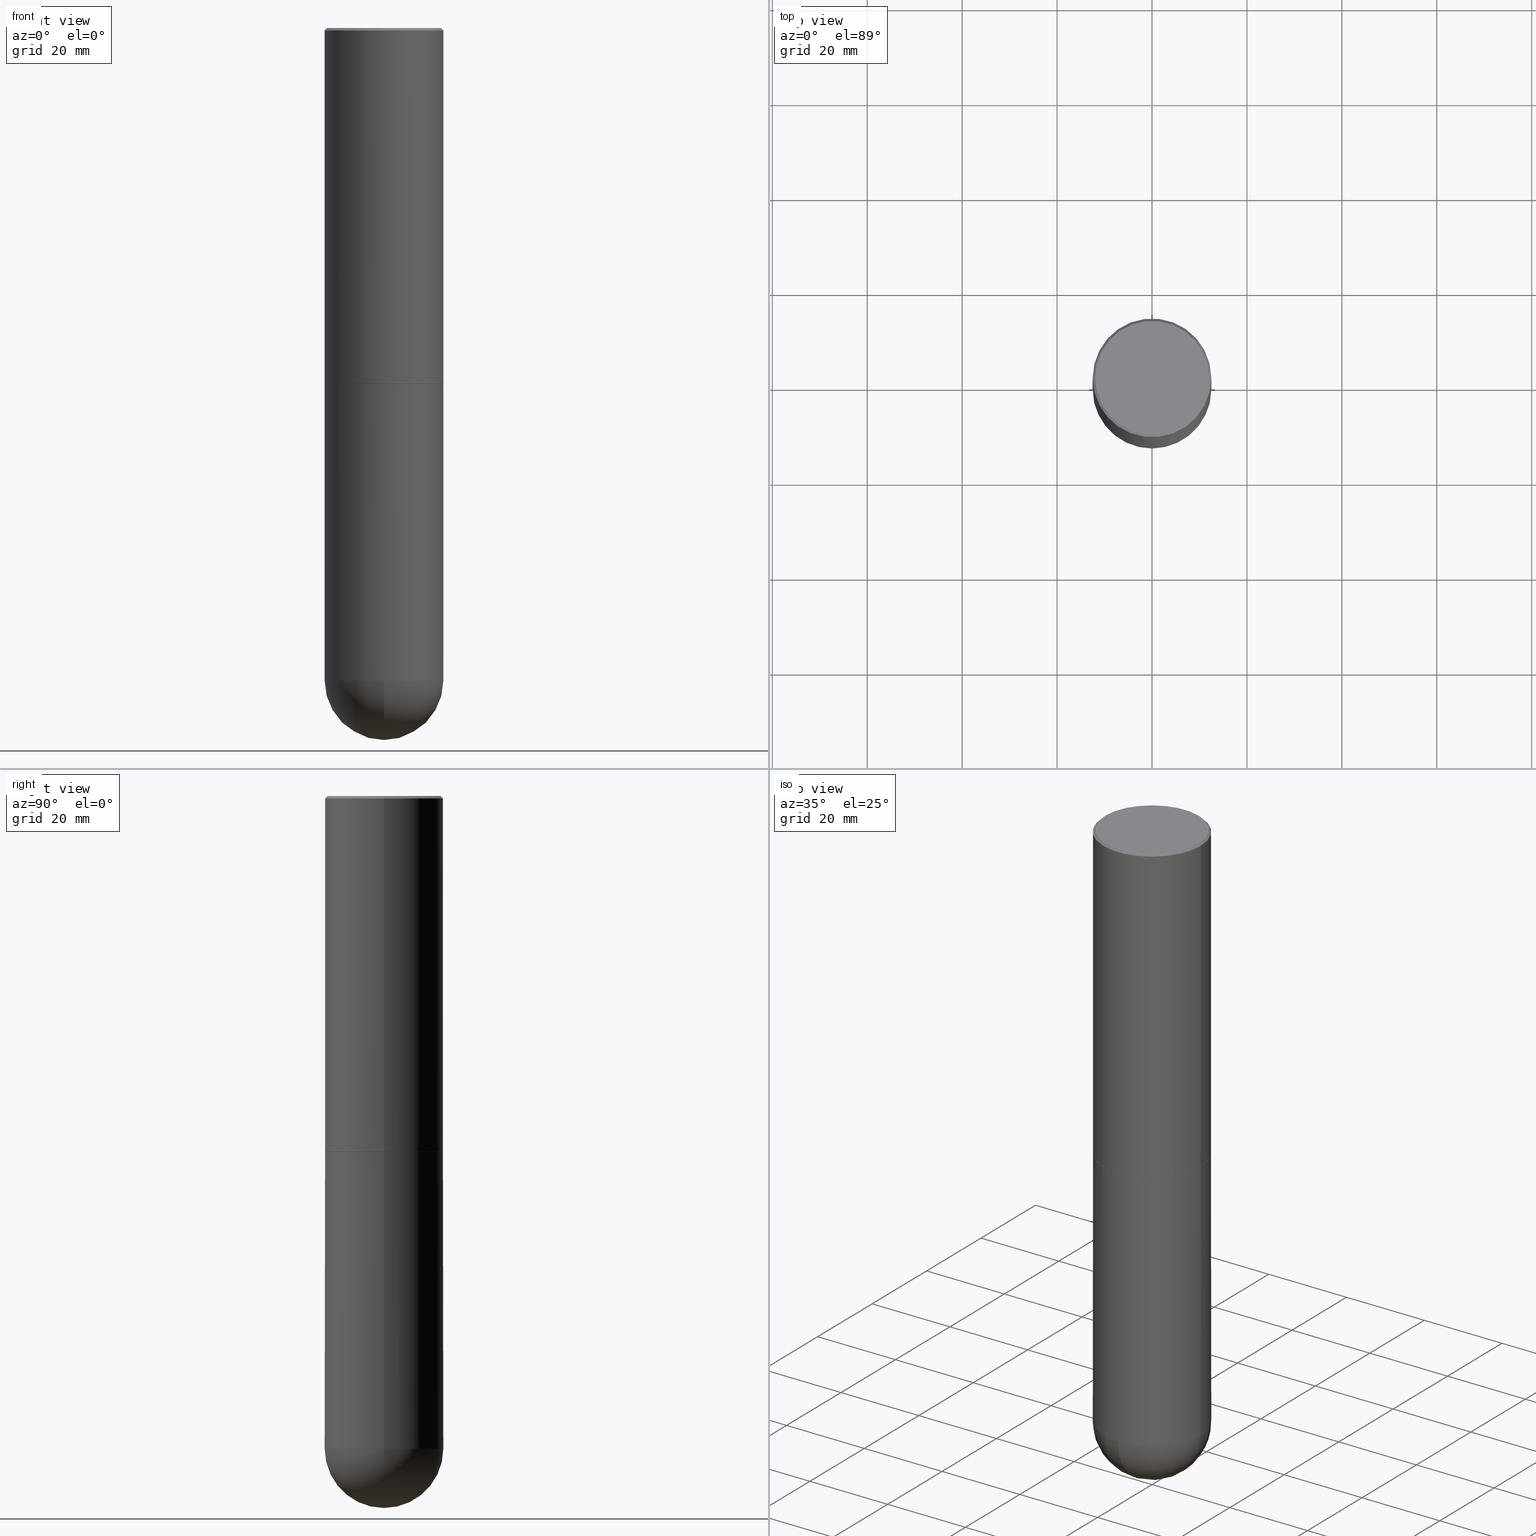
[diagram: canonical four-view strip — front | top / right | iso, engineering-drawing reading convention]
A machine part, canonical four-view strip (front | top / right | iso — engineering-drawing reading convention). The complete STEP part file that produces these views, byte-faithful:
ISO-10303-21;
HEADER;
FILE_DESCRIPTION (( 'STEP AP203' ),
    '1' );
FILE_NAME ('49530.STEP',
    '2024-04-10T12:15:57',
    ( '' ),
    ( '' ),
    'SwSTEP 2.0',
    'SolidWorks 2023',
    '' );
FILE_SCHEMA (( 'CONFIG_CONTROL_DESIGN' ));
ENDSEC;

DATA;
#1 = DIRECTION ( 'NONE',  ( -2.445468806185136597E-29, 3.491481338843145583E-15, 1.000000000000000000 ) ) ;
#2 = ORIENTED_EDGE ( 'NONE', *, *, #310, .T. ) ;
#3 = DIRECTION ( 'NONE',  ( 1.000000000000000000, -6.982962677686264344E-15, 0.000000000000000000 ) ) ;
#4 = ORIENTED_EDGE ( 'NONE', *, *, #162, .T. ) ;
#5 = CIRCLE ( 'NONE', #201, 0.4921500000000000319 ) ;
#6 = ORIENTED_EDGE ( 'NONE', *, *, #77, .F. ) ;
#7 = ORIENTED_EDGE ( 'NONE', *, *, #71, .F. ) ;
#8 = DIRECTION ( 'NONE',  ( -2.445468806185136597E-29, 3.491481338843145583E-15, 1.000000000000000000 ) ) ;
#9 = ADVANCED_FACE ( 'NONE', ( #134 ), #102, .T. ) ;
#10 = DATE_AND_TIME ( #18, #284 ) ;
#11 = CARTESIAN_POINT ( 'NONE',  ( -3.496936074043201946E-15, -0.4921500000000192387, -5.413349999999997664 ) ) ;
#12 = APPROVAL_PERSON_ORGANIZATION ( #86, #329, #153 ) ;
#13 = ORIENTED_EDGE ( 'NONE', *, *, #369, .T. ) ;
#14 = DIRECTION ( 'NONE',  ( 0.7071067811865474617, -2.468850131082256666E-15, 0.7071067811865474617 ) ) ;
#15 = DIRECTION ( 'NONE',  ( 6.982962677686266711E-15, 1.000000000000000000, -4.440675393541420887E-15 ) ) ;
#16 = EDGE_CURVE ( 'NONE', #173, #208, #382, .T. ) ;
#17 = DIRECTION ( 'NONE',  ( 1.000000000000000000, -6.982962677686265922E-15, 0.000000000000000000 ) ) ;
#18 = CALENDAR_DATE ( 2024, 10, 4 ) ;
#19 = AXIS2_PLACEMENT_3D ( 'NONE', #363, #191, #17 ) ;
#20 = CYLINDRICAL_SURFACE ( 'NONE', #324, 0.4921500000000001984 ) ;
#21 = PERSON_AND_ORGANIZATION ( #388, #263 ) ;
#22 = DIRECTION ( 'NONE',  ( -2.445468806185136597E-29, 3.491481338843145583E-15, 1.000000000000000000 ) ) ;
#23 = DATE_AND_TIME ( #33, #312 ) ;
#24 = CARTESIAN_POINT ( 'NONE',  ( -0.4921499999999999764, -1.110801765337101862E-14, -5.413349999999999440 ) ) ;
#25 = LINE ( 'NONE', #58, #411 ) ;
#26 = PERSON_AND_ORGANIZATION_ROLE ( 'classification_officer' ) ;
#27 = AXIS2_PLACEMENT_3D ( 'NONE', #32, #286, #232 ) ;
#28 = EDGE_CURVE ( 'NONE', #285, #208, #350, .T. ) ;
#29 = CONICAL_SURFACE ( 'NONE', #192, 0.4921500000000000319, 0.7853981633974473908 ) ;
#30 = ORIENTED_EDGE ( 'NONE', *, *, #375, .F. ) ;
#31 = EDGE_CURVE ( 'NONE', #208, #78, #187, .T. ) ;
#32 = CARTESIAN_POINT ( 'NONE',  ( 1.290705878404842200E-28, -1.937479287376659043E-14, -5.413349999999999440 ) ) ;
#33 = CALENDAR_DATE ( 2024, 10, 4 ) ;
#34 = ORIENTED_EDGE ( 'NONE', *, *, #94, .T. ) ;
#35 = FACE_OUTER_BOUND ( 'NONE', #386, .T. ) ;
#36 = AXIS2_PLACEMENT_3D ( 'NONE', #239, #40, #353 ) ;
#37 = LOCAL_TIME ( 8, 15, 57.00000000000000000, #112 ) ;
#38 = EDGE_CURVE ( 'NONE', #314, #315, #398, .T. ) ;
#39 = ORIENTED_EDGE ( 'NONE', *, *, #223, .F. ) ;
#40 = DIRECTION ( 'NONE',  ( -2.445468806185136597E-29, 3.491481338843145583E-15, 1.000000000000000000 ) ) ;
#41 = EDGE_LOOP ( 'NONE', ( #30, #34, #390, #4, #125 ) ) ;
#42 = PLANE ( 'NONE',  #224 ) ;
#43 = VERTEX_POINT ( 'NONE', #336 ) ;
#44 = DIRECTION ( 'NONE',  ( 2.438088387897960049E-29, -3.491481338843145188E-15, -1.000000000000000000 ) ) ;
#45 = AXIS2_PLACEMENT_3D ( 'NONE', #370, #82, #190 ) ;
#46 = DIRECTION ( 'NONE',  ( -2.445468806185136597E-29, 3.491481338843145583E-15, 1.000000000000000000 ) ) ;
#47 = APPROVAL ( #354, 'UNSPECIFIED' ) ;
#48 = EDGE_LOOP ( 'NONE', ( #39, #185 ) ) ;
#49 =( CONVERSION_BASED_UNIT ( 'INCH', #328 ) LENGTH_UNIT ( ) NAMED_UNIT ( #402 ) );
#50 = AXIS2_PLACEMENT_3D ( 'NONE', #403, #335, #56 ) ;
#51 = CC_DESIGN_SECURITY_CLASSIFICATION ( #68, ( #226 ) ) ;
#52 = LINE ( 'NONE', #119, #116 ) ;
#53 = CARTESIAN_POINT ( 'NONE',  ( 1.290705878404842200E-28, -1.937479287376659043E-14, -5.413349999999999440 ) ) ;
#54 = DIRECTION ( 'NONE',  ( -2.445468806185136877E-29, 3.491481338843145188E-15, 1.000000000000000000 ) ) ;
#55 = DIRECTION ( 'NONE',  ( 6.982962677686266711E-15, 1.000000000000000000, -4.440675393541420887E-15 ) ) ;
#56 = DIRECTION ( 'NONE',  ( 1.000000000000000000, -6.982962677686265922E-15, 4.876176775795935793E-29 ) ) ;
#57 = CONICAL_SURFACE ( 'NONE', #235, 0.4921500000000000319, 0.7853981633974473908 ) ;
#58 = CARTESIAN_POINT ( 'NONE',  ( -0.4921500000000001984, 3.496936074043334475E-15, -2.420853904668952630E-29 ) ) ;
#59 = CARTESIAN_POINT ( 'NONE',  ( 7.220735744022853640E-29, -1.030929694920215659E-14, -2.952700000000000546 ) ) ;
#60 = PRODUCT_DEFINITION_SHAPE ( 'NONE', 'NONE',  #137 ) ;
#61 = APPROVAL_STATUS ( 'not_yet_approved' ) ;
#62 = ORIENTED_EDGE ( 'NONE', *, *, #74, .T. ) ;
#63 = CALENDAR_DATE ( 2024, 10, 4 ) ;
#64 = FACE_OUTER_BOUND ( 'NONE', #48, .T. ) ;
#65 = ORIENTED_EDGE ( 'NONE', *, *, #223, .T. ) ;
#66 = CC_DESIGN_PERSON_AND_ORGANIZATION_ASSIGNMENT ( #250, #126, ( #137 ) ) ;
#67 = AXIS2_PLACEMENT_3D ( 'NONE', #332, #90, #216 ) ;
#68 = SECURITY_CLASSIFICATION ( '', '', #141 ) ;
#69 = ADVANCED_FACE ( 'NONE', ( #217 ), #57, .T. ) ;
#70 = CARTESIAN_POINT ( 'NONE',  ( -0.4911499999999999755, -6.814167848168200725E-15, -2.952700000000000546 ) ) ;
#71 = EDGE_CURVE ( 'NONE', #315, #81, #287, .T. ) ;
#72 = ORIENTED_EDGE ( 'NONE', *, *, #28, .F. ) ;
#73 = DIRECTION ( 'NONE',  ( 0.7071067811865469066, -7.319954787623254468E-15, -0.7071067811865482389 ) ) ;
#74 = EDGE_CURVE ( 'NONE', #264, #315, #25, .T. ) ;
#75 = AXIS2_PLACEMENT_3D ( 'NONE', #158, #276, #399 ) ;
#76 = APPROVAL_DATE_TIME ( #240, #329 ) ;
#77 = EDGE_CURVE ( 'NONE', #377, #81, #140, .T. ) ;
#78 = VERTEX_POINT ( 'NONE', #24 ) ;
#79 = CARTESIAN_POINT ( 'NONE',  ( -0.4921499999999999764, 3.496936074043332897E-15, -2.420853904668951509E-29 ) ) ;
#80 = CARTESIAN_POINT ( 'NONE',  ( -0.4911499999999999755, -6.819466302516424705E-15, -2.952700000000000546 ) ) ;
#81 = VERTEX_POINT ( 'NONE', #132 ) ;
#82 = DIRECTION ( 'NONE',  ( -1.000000000000000000, 7.105427357601001070E-15, -4.926315508542082329E-29 ) ) ;
#83 = SPHERICAL_SURFACE ( 'NONE', #106, 0.4921500000000000874 ) ;
#84 = CIRCLE ( 'NONE', #92, 0.4921500000000003094 ) ;
#85 = AXIS2_PLACEMENT_3D ( 'NONE', #99, #135, #337 ) ;
#86 = PERSON_AND_ORGANIZATION ( #388, #263 ) ;
#87 = DIRECTION ( 'NONE',  ( -2.445468806185136597E-29, 3.491481338843145583E-15, 1.000000000000000000 ) ) ;
#88 = DIRECTION ( 'NONE',  ( -0.7071067811865469066, 2.468850131082249961E-15, -0.7071067811865482389 ) ) ;
#89 = APPROVAL_STATUS ( 'not_yet_approved' ) ;
#90 = DIRECTION ( 'NONE',  ( -2.445468806185136597E-29, 3.491481338843145583E-15, 1.000000000000000000 ) ) ;
#91 = FACE_OUTER_BOUND ( 'NONE', #202, .T. ) ;
#92 = AXIS2_PLACEMENT_3D ( 'NONE', #243, #356, #209 ) ;
#93 = DIRECTION ( 'NONE',  ( -2.445468806185136877E-29, 3.491481338843145188E-15, 1.000000000000000000 ) ) ;
#94 = EDGE_CURVE ( 'NONE', #78, #378, #303, .T. ) ;
#95 = PERSON_AND_ORGANIZATION_ROLE ( 'design_supplier' ) ;
#96 = UNCERTAINTY_MEASURE_WITH_UNIT (LENGTH_MEASURE( 1.000000000000000082E-05 ), #49, 'distance_accuracy_value', 'NONE');
#97 = ORIENTED_EDGE ( 'NONE', *, *, #71, .T. ) ;
#98 = DIRECTION ( 'NONE',  ( -2.445468806185136877E-29, 3.491481338843145188E-15, 1.000000000000000000 ) ) ;
#99 = CARTESIAN_POINT ( 'NONE',  ( 0.000000000000000000, 0.000000000000000000, 0.000000000000000000 ) ) ;
#100 = ORIENTED_EDGE ( 'NONE', *, *, #375, .T. ) ;
#101 = DIRECTION ( 'NONE',  ( -2.445468806185136597E-29, 3.491481338843145583E-15, 1.000000000000000000 ) ) ;
#102 = CYLINDRICAL_SURFACE ( 'NONE', #211, 0.4921499999999999764 ) ;
#103 = ORIENTED_EDGE ( 'NONE', *, *, #345, .T. ) ;
#104 = CARTESIAN_POINT ( 'NONE',  ( 1.323817856196230713E-28, -1.890061050562653856E-14, -5.413349999999999440 ) ) ;
#105 = DIRECTION ( 'NONE',  ( -2.445468806185136597E-29, 3.491481338843145583E-15, 1.000000000000000000 ) ) ;
#106 = AXIS2_PLACEMENT_3D ( 'NONE', #53, #129, #15 ) ;
#107 = ORIENTED_EDGE ( 'NONE', *, *, #404, .F. ) ;
#108 = MANIFOLD_SOLID_BREP ( 'Body-Move/Copy2[1]', #364 ) ;
#109 = FACE_OUTER_BOUND ( 'NONE', #318, .T. ) ;
#110 = CC_DESIGN_DATE_AND_TIME_ASSIGNMENT ( #408, #309, ( #68 ) ) ;
#111 = DIRECTION ( 'NONE',  ( -1.000000000000000000, 6.982962677686265922E-15, -4.876176775795935793E-29 ) ) ;
#112 = COORDINATED_UNIVERSAL_TIME_OFFSET ( 5, 0, .BEHIND. ) ;
#113 = ORIENTED_EDGE ( 'NONE', *, *, #412, .T. ) ;
#114 = LINE ( 'NONE', #234, #268 ) ;
#115 = VECTOR ( 'NONE', #88, 39.37007874015748143 ) ;
#116 = VECTOR ( 'NONE', #14, 39.37007874015748854 ) ;
#117 = COORDINATED_UNIVERSAL_TIME_OFFSET ( 5, 0, .BEHIND. ) ;
#118 = EDGE_LOOP ( 'NONE', ( #244, #290, #170, #385 ) ) ;
#119 = CARTESIAN_POINT ( 'NONE',  ( 0.4911499999999999755, -1.373897906834776478E-14, -2.952700000000000546 ) ) ;
#120 = CARTESIAN_POINT ( 'NONE',  ( -8.142041031814712920E-45, 1.162467672896748646E-30, 3.329439742278319996E-16 ) ) ;
#121 = CC_DESIGN_PERSON_AND_ORGANIZATION_ASSIGNMENT ( #207, #327, ( #226 ) ) ;
#122 = DESIGN_CONTEXT ( 'detailed design', #406, 'design' ) ;
#123 = VERTEX_POINT ( 'NONE', #256 ) ;
#124 = PLANE ( 'NONE',  #344 ) ;
#125 = ORIENTED_EDGE ( 'NONE', *, *, #310, .F. ) ;
#126 = PERSON_AND_ORGANIZATION_ROLE ( 'creator' ) ;
#127 =( NAMED_UNIT ( * ) SI_UNIT ( $, .STERADIAN. ) SOLID_ANGLE_UNIT ( ) );
#128 = VECTOR ( 'NONE', #373, 39.37007874015748143 ) ;
#129 = DIRECTION ( 'NONE',  ( -1.000000000000000000, 6.982962677686266711E-15, -4.883557194083112901E-29 ) ) ;
#130 = CARTESIAN_POINT ( 'NONE',  ( 3.436665081823426728E-15, 0.4921499999999808250, -5.413350000000002105 ) ) ;
#131 = COORDINATED_UNIVERSAL_TIME_OFFSET ( 5, 0, .BEHIND. ) ;
#132 = CARTESIAN_POINT ( 'NONE',  ( 0.4921500000000000319, -3.446223716380123138E-15, -0.02000000000000010797 ) ) ;
#133 = CIRCLE ( 'NONE', #75, 0.4911499999999999755 ) ;
#134 = FACE_OUTER_BOUND ( 'NONE', #41, .T. ) ;
#135 = DIRECTION ( 'NONE',  ( 0.000000000000000000, 0.000000000000000000, 1.000000000000000000 ) ) ;
#136 = CARTESIAN_POINT ( 'NONE',  ( 0.4921499999999999764, -3.436665081823295777E-15, 2.399810400207969603E-29 ) ) ;
#137 = PRODUCT_DEFINITION ( 'UNKNOWN', '', #226, #122 ) ;
#138 = SHAPE_DEFINITION_REPRESENTATION ( #60, #218 ) ;
#139 = ORIENTED_EDGE ( 'NONE', *, *, #94, .F. ) ;
#140 = LINE ( 'NONE', #308, #383 ) ;
#141 = SECURITY_CLASSIFICATION_LEVEL ( 'unclassified' ) ;
#142 = AXIS2_PLACEMENT_3D ( 'NONE', #248, #87, #279 ) ;
#143 = ORIENTED_EDGE ( 'NONE', *, *, #342, .T. ) ;
#144 = CARTESIAN_POINT ( 'NONE',  ( 4.890937612370299433E-31, -6.982962677686328587E-17, -0.02000000000000010797 ) ) ;
#145 = CC_DESIGN_PERSON_AND_ORGANIZATION_ASSIGNMENT ( #306, #95, ( #226 ) ) ;
#146 = DIRECTION ( 'NONE',  ( 1.000000000000000000, -6.982962677686266711E-15, 4.876176775795935232E-29 ) ) ;
#147 = ORIENTED_EDGE ( 'NONE', *, *, #180, .F. ) ;
#148 = ORIENTED_EDGE ( 'NONE', *, *, #266, .T. ) ;
#149 = AXIS2_PLACEMENT_3D ( 'NONE', #247, #254, #55 ) ;
#150 = DIRECTION ( 'NONE',  ( 1.000000000000000000, -6.982962677686265922E-15, 0.000000000000000000 ) ) ;
#151 = ORIENTED_EDGE ( 'NONE', *, *, #412, .F. ) ;
#152 = DIRECTION ( 'NONE',  ( -2.445468806185136597E-29, 3.491481338843145583E-15, 1.000000000000000000 ) ) ;
#153 = APPROVAL_ROLE ( '' ) ;
#154 = AXIS2_PLACEMENT_3D ( 'NONE', #160, #165, #253 ) ;
#155 = DIRECTION ( 'NONE',  ( -0.7071067811865474617, 7.493145998870352582E-15, 0.7071067811865474617 ) ) ;
#156 = DIRECTION ( 'NONE',  ( -2.445468806185136597E-29, 3.491481338843145583E-15, 1.000000000000000000 ) ) ;
#157 = ADVANCED_FACE ( 'NONE', ( #64 ), #200, .F. ) ;
#158 = CARTESIAN_POINT ( 'NONE',  ( 7.220735744022853640E-29, -1.030929694920215659E-14, -2.952700000000000546 ) ) ;
#159 = LINE ( 'NONE', #79, #251 ) ;
#160 = CARTESIAN_POINT ( 'NONE',  ( 1.323817856196230713E-28, -1.890061050562653856E-14, -5.413349999999999440 ) ) ;
#161 = CONICAL_SURFACE ( 'NONE', #67, 0.4911499999999999755, 0.7853981633974482790 ) ;
#162 = EDGE_CURVE ( 'NONE', #285, #123, #405, .T. ) ;
#163 = DATE_TIME_ROLE ( 'creation_date' ) ;
#164 =( LENGTH_UNIT ( ) NAMED_UNIT ( * ) SI_UNIT ( $, .METRE. ) );
#165 = DIRECTION ( 'NONE',  ( -2.445468806185136597E-29, 3.491481338843145583E-15, 1.000000000000000000 ) ) ;
#166 = CLOSED_SHELL ( 'NONE', ( #281, #349, #69, #301, #182, #206, #157, #319 ) ) ;
#167 = AXIS2_PLACEMENT_3D ( 'NONE', #104, #22, #213 ) ;
#168 = APPROVAL_ROLE ( '' ) ;
#169 = CC_DESIGN_APPROVAL ( #210, ( #68 ) ) ;
#170 = ORIENTED_EDGE ( 'NONE', *, *, #404, .T. ) ;
#171 = ADVANCED_FACE ( 'NONE', ( #91 ), #124, .F. ) ;
#172 = DIRECTION ( 'NONE',  ( -2.445468806185136597E-29, 3.491481338843145583E-15, 1.000000000000000000 ) ) ;
#173 = VERTEX_POINT ( 'NONE', #397 ) ;
#174 = CARTESIAN_POINT ( 'NONE',  ( 0.000000000000000000, 0.000000000000000000, 0.000000000000000000 ) ) ;
#175 = PRODUCT_RELATED_PRODUCT_CATEGORY ( 'detail', '', ( #225 ) ) ;
#176 = CONICAL_SURFACE ( 'NONE', #283, 0.4911499999999999755, 0.7853981633974482790 ) ;
#177 = CYLINDRICAL_SURFACE ( 'NONE', #311, 0.4921500000000001984 ) ;
#178 = DIRECTION ( 'NONE',  ( 1.000000000000000000, -6.982962677686265922E-15, 0.000000000000000000 ) ) ;
#179 = SPHERICAL_SURFACE ( 'NONE', #149, 0.4921500000000000874 ) ;
#180 = EDGE_CURVE ( 'NONE', #314, #184, #242, .T. ) ;
#181 = ORIENTED_EDGE ( 'NONE', *, *, #342, .F. ) ;
#182 = ADVANCED_FACE ( 'NONE', ( #371 ), #20, .T. ) ;
#183 = CARTESIAN_POINT ( 'NONE',  ( -0.4721499999999996255, 3.331920641658000829E-15, 3.329439742278088268E-16 ) ) ;
#184 = VERTEX_POINT ( 'NONE', #219 ) ;
#185 = ORIENTED_EDGE ( 'NONE', *, *, #272, .F. ) ;
#186 = DIRECTION ( 'NONE',  ( -2.445468806185136597E-29, 3.491481338843145583E-15, 1.000000000000000000 ) ) ;
#187 = CIRCLE ( 'NONE', #292, 0.4921499999999999764 ) ;
#188 = CARTESIAN_POINT ( 'NONE',  ( 1.323817856196230713E-28, -1.890061050562653856E-14, -5.413349999999999440 ) ) ;
#189 = CARTESIAN_POINT ( 'NONE',  ( -0.4921500000000003094, -1.690881473276752982E-15, -2.951700000000000212 ) ) ;
#190 = DIRECTION ( 'NONE',  ( -7.105427357601001070E-15, -1.000000000000000000, 0.000000000000000000 ) ) ;
#191 = DIRECTION ( 'NONE',  ( -2.445468806185136597E-29, 3.491481338843145583E-15, 1.000000000000000000 ) ) ;
#192 = AXIS2_PLACEMENT_3D ( 'NONE', #326, #294, #289 ) ;
#193 = CARTESIAN_POINT ( 'NONE',  ( 0.000000000000000000, 0.000000000000000000, 0.000000000000000000 ) ) ;
#194 = APPLICATION_PROTOCOL_DEFINITION ( 'international standard', 'config_control_design', 1994, #384 ) ;
#195 = PERSON_AND_ORGANIZATION ( #388, #263 ) ;
#196 = CIRCLE ( 'NONE', #36, 0.4721499999999996255 ) ;
#197 = APPROVAL_PERSON_ORGANIZATION ( #368, #47, #331 ) ;
#198 = EDGE_LOOP ( 'NONE', ( #317, #100, #241, #257, #298 ) ) ;
#199 = DIRECTION ( 'NONE',  ( 1.000000000000000000, -6.982962677686265922E-15, 4.876176775795935793E-29 ) ) ;
#200 = PLANE ( 'NONE',  #374 ) ;
#201 = AXIS2_PLACEMENT_3D ( 'NONE', #203, #186, #215 ) ;
#202 = EDGE_LOOP ( 'NONE', ( #148, #2 ) ) ;
#203 = CARTESIAN_POINT ( 'NONE',  ( 4.890937612370299433E-31, -6.982962677686328587E-17, -0.02000000000000010797 ) ) ;
#204 = CC_DESIGN_PERSON_AND_ORGANIZATION_ASSIGNMENT ( #214, #393, ( #225 ) ) ;
#205 = CARTESIAN_POINT ( 'NONE',  ( -0.4921500000000000319, 3.366835455046432873E-15, -0.02000000000000010797 ) ) ;
#206 = ADVANCED_FACE ( 'NONE', ( #307 ), #161, .T. ) ;
#207 = PERSON_AND_ORGANIZATION ( #388, #263 ) ;
#208 = VERTEX_POINT ( 'NONE', #130 ) ;
#209 = DIRECTION ( 'NONE',  ( 1.000000000000000000, -6.982962677686265922E-15, 0.000000000000000000 ) ) ;
#210 = APPROVAL ( #61, 'UNSPECIFIED' ) ;
#211 = AXIS2_PLACEMENT_3D ( 'NONE', #174, #172, #199 ) ;
#212 = AXIS2_PLACEMENT_3D ( 'NONE', #322, #46, #150 ) ;
#213 = DIRECTION ( 'NONE',  ( 1.000000000000000000, -6.982962677686265922E-15, 0.000000000000000000 ) ) ;
#214 = PERSON_AND_ORGANIZATION ( #388, #263 ) ;
#215 = DIRECTION ( 'NONE',  ( 1.000000000000000000, -6.982962677686265922E-15, 0.000000000000000000 ) ) ;
#216 = DIRECTION ( 'NONE',  ( 1.000000000000000000, -6.982962677686264344E-15, 0.000000000000000000 ) ) ;
#217 = FACE_OUTER_BOUND ( 'NONE', #246, .T. ) ;
#218 = ADVANCED_BREP_SHAPE_REPRESENTATION ( '49530', ( #108, #376, #85 ), #230 ) ;
#219 = CARTESIAN_POINT ( 'NONE',  ( 0.4721499999999996255, -3.342703923013973791E-15, 3.329439742278552710E-16 ) ) ;
#220 = COORDINATED_UNIVERSAL_TIME_OFFSET ( 5, 0, .BEHIND. ) ;
#221 = CARTESIAN_POINT ( 'NONE',  ( 3.436665081823367957E-15, 0.4921499999999896513, -2.952700000000001435 ) ) ;
#222 = CIRCLE ( 'NONE', #262, 0.4921499999999999764 ) ;
#223 = EDGE_CURVE ( 'NONE', #394, #291, #297, .T. ) ;
#224 = AXIS2_PLACEMENT_3D ( 'NONE', #238, #44, #111 ) ;
#225 = PRODUCT ( '49530', '49530', '', ( #389 ) ) ;
#226 = PRODUCT_DEFINITION_FORMATION_WITH_SPECIFIED_SOURCE ( 'ANY', '', #225, .NOT_KNOWN. ) ;
#227 = CARTESIAN_POINT ( 'NONE',  ( 1.323817856196230713E-28, -1.890061050562653856E-14, -5.413349999999999440 ) ) ;
#228 = ADVANCED_FACE ( 'NONE', ( #360 ), #299, .T. ) ;
#229 = AXIS2_PLACEMENT_3D ( 'NONE', #120, #255, #367 ) ;
#230 =( GEOMETRIC_REPRESENTATION_CONTEXT ( 3 ) GLOBAL_UNCERTAINTY_ASSIGNED_CONTEXT ( ( #96 ) ) GLOBAL_UNIT_ASSIGNED_CONTEXT ( ( #49, #362, #127 ) ) REPRESENTATION_CONTEXT ( 'NONE', 'WORKASPACE' ) );
#231 = ORIENTED_EDGE ( 'NONE', *, *, #249, .T. ) ;
#232 = DIRECTION ( 'NONE',  ( 6.982962677686265922E-15, 1.000000000000000000, 0.000000000000000000 ) ) ;
#233 = ORIENTED_EDGE ( 'NONE', *, *, #280, .F. ) ;
#234 = CARTESIAN_POINT ( 'NONE',  ( 0.4921500000000000319, -3.446223716380123138E-15, -0.02000000000000010797 ) ) ;
#235 = AXIS2_PLACEMENT_3D ( 'NONE', #144, #407, #258 ) ;
#236 = APPROVAL_PERSON_ORGANIZATION ( #21, #210, #168 ) ;
#237 = ORIENTED_EDGE ( 'NONE', *, *, #369, .F. ) ;
#238 = CARTESIAN_POINT ( 'NONE',  ( 3.297005828269567997E-15, 0.4721499999999996255, -1.482030927020873866E-15 ) ) ;
#239 = CARTESIAN_POINT ( 'NONE',  ( -8.142041031814712920E-45, 1.162467672896748646E-30, 3.329439742278319996E-16 ) ) ;
#240 = DATE_AND_TIME ( #357, #37 ) ;
#241 = ORIENTED_EDGE ( 'NONE', *, *, #266, .F. ) ;
#242 = CIRCLE ( 'NONE', #229, 0.4721499999999996255 ) ;
#243 = CARTESIAN_POINT ( 'NONE',  ( 7.218290275216666916E-29, -1.030580546786331359E-14, -2.951700000000000212 ) ) ;
#244 = ORIENTED_EDGE ( 'NONE', *, *, #249, .F. ) ;
#245 = DIRECTION ( 'NONE',  ( -2.445468806185136597E-29, 3.491481338843145583E-15, 1.000000000000000000 ) ) ;
#246 = EDGE_LOOP ( 'NONE', ( #409, #143, #13, #346 ) ) ;
#247 = CARTESIAN_POINT ( 'NONE',  ( 1.290705878404842200E-28, -1.937479287376659043E-14, -5.413349999999999440 ) ) ;
#248 = CARTESIAN_POINT ( 'NONE',  ( 7.220735744022853640E-29, -1.030929694920215659E-14, -2.952700000000000546 ) ) ;
#249 = EDGE_CURVE ( 'NONE', #291, #264, #333, .T. ) ;
#250 = PERSON_AND_ORGANIZATION ( #388, #263 ) ;
#251 = VECTOR ( 'NONE', #54, 39.37007874015748143 ) ;
#252 = APPROVAL_DATE_TIME ( #400, #47 ) ;
#253 = DIRECTION ( 'NONE',  ( 1.000000000000000000, -6.982962677686265922E-15, 0.000000000000000000 ) ) ;
#254 = DIRECTION ( 'NONE',  ( -1.000000000000000000, 6.982962677686266711E-15, -4.883557194083112901E-29 ) ) ;
#255 = DIRECTION ( 'NONE',  ( -2.445468806185136597E-29, 3.491481338843145583E-15, 1.000000000000000000 ) ) ;
#256 = CARTESIAN_POINT ( 'NONE',  ( 0.4921499999999999764, -1.374596203102545079E-14, -2.952700000000000102 ) ) ;
#257 = ORIENTED_EDGE ( 'NONE', *, *, #162, .F. ) ;
#258 = DIRECTION ( 'NONE',  ( -1.000000000000000000, 6.982962677686265922E-15, 0.000000000000000000 ) ) ;
#259 = CARTESIAN_POINT ( 'NONE',  ( 4.890937612370299433E-31, -6.982962677686328587E-17, -0.02000000000000010797 ) ) ;
#260 = FACE_OUTER_BOUND ( 'NONE', #267, .T. ) ;
#261 = ADVANCED_FACE ( 'NONE', ( #330 ), #83, .T. ) ;
#262 = AXIS2_PLACEMENT_3D ( 'NONE', #381, #152, #387 ) ;
#263 = ORGANIZATION ( 'UNSPECIFIED', 'UNSPECIFIED', '' ) ;
#264 = VERTEX_POINT ( 'NONE', #189 ) ;
#265 = CARTESIAN_POINT ( 'NONE',  ( 0.4921499999999999764, -1.804161880923764651E-14, -5.413349999999999440 ) ) ;
#266 = EDGE_CURVE ( 'NONE', #123, #43, #379, .T. ) ;
#267 = EDGE_LOOP ( 'NONE', ( #151, #343, #72, #233 ) ) ;
#268 = VECTOR ( 'NONE', #73, 39.37007874015748143 ) ;
#269 = ORIENTED_EDGE ( 'NONE', *, *, #77, .T. ) ;
#270 = CC_DESIGN_APPROVAL ( #47, ( #137 ) ) ;
#271 = ORIENTED_EDGE ( 'NONE', *, *, #305, .T. ) ;
#272 = EDGE_CURVE ( 'NONE', #291, #394, #133, .T. ) ;
#273 = DIRECTION ( 'NONE',  ( 1.000000000000000000, -6.982962677686265922E-15, 0.000000000000000000 ) ) ;
#274 = CALENDAR_DATE ( 2024, 10, 4 ) ;
#275 = EDGE_LOOP ( 'NONE', ( #325, #271, #269, #7 ) ) ;
#276 = DIRECTION ( 'NONE',  ( -2.445468806185136597E-29, 3.491481338843145583E-15, 1.000000000000000000 ) ) ;
#277 = APPLICATION_PROTOCOL_DEFINITION ( 'international standard', 'config_control_design', 1994, #406 ) ;
#278 = AXIS2_PLACEMENT_3D ( 'NONE', #227, #101, #347 ) ;
#279 = DIRECTION ( 'NONE',  ( 1.000000000000000000, -6.982962677686264344E-15, 0.000000000000000000 ) ) ;
#280 = EDGE_CURVE ( 'NONE', #378, #285, #366, .T. ) ;
#281 = ADVANCED_FACE ( 'NONE', ( #351 ), #176, .T. ) ;
#282 = DIRECTION ( 'NONE',  ( 1.000000000000000000, -6.982962677686265922E-15, 4.876176775795935793E-29 ) ) ;
#283 = AXIS2_PLACEMENT_3D ( 'NONE', #295, #8, #3 ) ;
#284 = LOCAL_TIME ( 8, 15, 57.00000000000000000, #365 ) ;
#285 = VERTEX_POINT ( 'NONE', #265 ) ;
#286 = DIRECTION ( 'NONE',  ( 1.000000000000000000, -6.982962677686265922E-15, 4.883557194083112340E-29 ) ) ;
#287 = CIRCLE ( 'NONE', #401, 0.4921500000000000319 ) ;
#288 = LOCAL_TIME ( 8, 15, 57.00000000000000000, #117 ) ;
#289 = DIRECTION ( 'NONE',  ( -1.000000000000000000, 6.982962677686265922E-15, 0.000000000000000000 ) ) ;
#290 = ORIENTED_EDGE ( 'NONE', *, *, #272, .T. ) ;
#291 = VERTEX_POINT ( 'NONE', #70 ) ;
#292 = AXIS2_PLACEMENT_3D ( 'NONE', #188, #156, #273 ) ;
#293 = CC_DESIGN_APPROVAL ( #329, ( #226 ) ) ;
#294 = DIRECTION ( 'NONE',  ( 2.445468806185136597E-29, -3.491481338843145583E-15, -1.000000000000000000 ) ) ;
#295 = CARTESIAN_POINT ( 'NONE',  ( 7.220735744022853640E-29, -1.030929694920215659E-14, -2.952700000000000546 ) ) ;
#296 = EDGE_LOOP ( 'NONE', ( #320, #113, #139, #396 ) ) ;
#297 = CIRCLE ( 'NONE', #142, 0.4911499999999999755 ) ;
#298 = ORIENTED_EDGE ( 'NONE', *, *, #28, .T. ) ;
#299 = CYLINDRICAL_SURFACE ( 'NONE', #50, 0.4921499999999999764 ) ;
#300 = CARTESIAN_POINT ( 'NONE',  ( -0.4921500000000000319, 3.366835455046432873E-15, -0.02000000000000010797 ) ) ;
#301 = ADVANCED_FACE ( 'NONE', ( #109 ), #29, .T. ) ;
#302 = DIRECTION ( 'NONE',  ( 2.438088387897960049E-29, -3.491481338843145188E-15, -1.000000000000000000 ) ) ;
#303 = CIRCLE ( 'NONE', #278, 0.4921499999999999764 ) ;
#304 = LOCAL_TIME ( 8, 15, 57.00000000000000000, #131 ) ;
#305 = EDGE_CURVE ( 'NONE', #264, #377, #392, .T. ) ;
#306 = PERSON_AND_ORGANIZATION ( #388, #263 ) ;
#307 = FACE_OUTER_BOUND ( 'NONE', #118, .T. ) ;
#308 = CARTESIAN_POINT ( 'NONE',  ( 0.4921500000000001984, -3.436665081823297354E-15, 2.399810400207970443E-29 ) ) ;
#309 = DATE_TIME_ROLE ( 'classification_date' ) ;
#310 = EDGE_CURVE ( 'NONE', #43, #123, #222, .T. ) ;
#311 = AXIS2_PLACEMENT_3D ( 'NONE', #348, #1, #146 ) ;
#312 = LOCAL_TIME ( 8, 15, 57.00000000000000000, #220 ) ;
#313 = APPROVAL_DATE_TIME ( #23, #210 ) ;
#314 = VERTEX_POINT ( 'NONE', #183 ) ;
#315 = VERTEX_POINT ( 'NONE', #205 ) ;
#316 = DIRECTION ( 'NONE',  ( -2.438088387897960049E-29, 3.491481338843145188E-15, 1.000000000000000000 ) ) ;
#317 = ORIENTED_EDGE ( 'NONE', *, *, #31, .T. ) ;
#318 = EDGE_LOOP ( 'NONE', ( #181, #147, #355, #97 ) ) ;
#319 = ADVANCED_FACE ( 'NONE', ( #391 ), #42, .F. ) ;
#320 = ORIENTED_EDGE ( 'NONE', *, *, #16, .F. ) ;
#321 = EDGE_LOOP ( 'NONE', ( #358, #410 ) ) ;
#322 = CARTESIAN_POINT ( 'NONE',  ( 7.218290275216666916E-29, -1.030580546786331359E-14, -2.951700000000000212 ) ) ;
#323 = CC_DESIGN_DATE_AND_TIME_ASSIGNMENT ( #10, #163, ( #137 ) ) ;
#324 = AXIS2_PLACEMENT_3D ( 'NONE', #193, #245, #395 ) ;
#325 = ORIENTED_EDGE ( 'NONE', *, *, #74, .F. ) ;
#326 = CARTESIAN_POINT ( 'NONE',  ( 4.890937612370299433E-31, -6.982962677686328587E-17, -0.02000000000000010797 ) ) ;
#327 = PERSON_AND_ORGANIZATION_ROLE ( 'creator' ) ;
#328 = LENGTH_MEASURE_WITH_UNIT ( LENGTH_MEASURE( 0.02539999999999999897 ), #164 );
#329 = APPROVAL ( #89, 'UNSPECIFIED' ) ;
#330 = FACE_OUTER_BOUND ( 'NONE', #296, .T. ) ;
#331 = APPROVAL_ROLE ( '' ) ;
#332 = CARTESIAN_POINT ( 'NONE',  ( 7.220735744022853640E-29, -1.030929694920215659E-14, -2.952700000000000546 ) ) ;
#333 = LINE ( 'NONE', #80, #338 ) ;
#334 = EDGE_LOOP ( 'NONE', ( #65, #231, #361, #107 ) ) ;
#335 = DIRECTION ( 'NONE',  ( -2.445468806185136597E-29, 3.491481338843145583E-15, 1.000000000000000000 ) ) ;
#336 = CARTESIAN_POINT ( 'NONE',  ( -0.4921499999999999764, -1.110801765337101547E-14, -2.952700000000000102 ) ) ;
#337 = DIRECTION ( 'NONE',  ( 1.000000000000000000, 0.000000000000000000, 0.000000000000000000 ) ) ;
#338 = VECTOR ( 'NONE', #155, 39.37007874015748854 ) ;
#339 = DIRECTION ( 'NONE',  ( -1.000000000000000000, 6.982962677686265922E-15, -4.876176775795935793E-29 ) ) ;
#340 = CIRCLE ( 'NONE', #45, 0.4921500000000000874 ) ;
#341 = EDGE_CURVE ( 'NONE', #184, #314, #196, .T. ) ;
#342 = EDGE_CURVE ( 'NONE', #184, #81, #114, .T. ) ;
#343 = ORIENTED_EDGE ( 'NONE', *, *, #16, .T. ) ;
#344 = AXIS2_PLACEMENT_3D ( 'NONE', #221, #302, #339 ) ;
#345 = EDGE_CURVE ( 'NONE', #377, #264, #84, .T. ) ;
#346 = ORIENTED_EDGE ( 'NONE', *, *, #38, .F. ) ;
#347 = DIRECTION ( 'NONE',  ( 1.000000000000000000, -6.982962677686265922E-15, 0.000000000000000000 ) ) ;
#348 = CARTESIAN_POINT ( 'NONE',  ( 0.000000000000000000, 0.000000000000000000, 0.000000000000000000 ) ) ;
#349 = ADVANCED_FACE ( 'NONE', ( #35 ), #177, .T. ) ;
#350 = CIRCLE ( 'NONE', #167, 0.4921499999999999764 ) ;
#351 = FACE_OUTER_BOUND ( 'NONE', #334, .T. ) ;
#352 = ADVANCED_FACE ( 'NONE', ( #260 ), #179, .T. ) ;
#353 = DIRECTION ( 'NONE',  ( 1.000000000000000000, -6.982962677686265922E-15, 4.882029041999365698E-29 ) ) ;
#354 = APPROVAL_STATUS ( 'not_yet_approved' ) ;
#355 = ORIENTED_EDGE ( 'NONE', *, *, #38, .T. ) ;
#356 = DIRECTION ( 'NONE',  ( -2.445468806185136597E-29, 3.491481338843145583E-15, 1.000000000000000000 ) ) ;
#357 = CALENDAR_DATE ( 2024, 10, 4 ) ;
#358 = ORIENTED_EDGE ( 'NONE', *, *, #180, .T. ) ;
#359 = CARTESIAN_POINT ( 'NONE',  ( 0.4911499999999999755, -1.373897906834776478E-14, -2.952700000000000546 ) ) ;
#360 = FACE_OUTER_BOUND ( 'NONE', #198, .T. ) ;
#361 = ORIENTED_EDGE ( 'NONE', *, *, #345, .F. ) ;
#362 =( NAMED_UNIT ( * ) PLANE_ANGLE_UNIT ( ) SI_UNIT ( $, .RADIAN. ) );
#363 = CARTESIAN_POINT ( 'NONE',  ( 7.220735744022852519E-29, -1.030929694920215502E-14, -2.952700000000000102 ) ) ;
#364 = CLOSED_SHELL ( 'NONE', ( #228, #261, #352, #171, #9 ) ) ;
#365 = COORDINATED_UNIVERSAL_TIME_OFFSET ( 5, 0, .BEHIND. ) ;
#366 = CIRCLE ( 'NONE', #154, 0.4921499999999999764 ) ;
#367 = DIRECTION ( 'NONE',  ( 1.000000000000000000, -6.982962677686265922E-15, 4.882029041999365698E-29 ) ) ;
#368 = PERSON_AND_ORGANIZATION ( #388, #263 ) ;
#369 = EDGE_CURVE ( 'NONE', #81, #315, #5, .T. ) ;
#370 = CARTESIAN_POINT ( 'NONE',  ( 1.290705878404842200E-28, -1.937479287376659043E-14, -5.413349999999999440 ) ) ;
#371 = FACE_OUTER_BOUND ( 'NONE', #275, .T. ) ;
#372 = CARTESIAN_POINT ( 'NONE',  ( 0.4921500000000003094, -1.374247054968661252E-14, -2.951700000000000212 ) ) ;
#373 = DIRECTION ( 'NONE',  ( -2.445468806185136877E-29, 3.491481338843145188E-15, 1.000000000000000000 ) ) ;
#374 = AXIS2_PLACEMENT_3D ( 'NONE', #59, #316, #282 ) ;
#375 = EDGE_CURVE ( 'NONE', #78, #43, #159, .T. ) ;
#376 = MANIFOLD_SOLID_BREP ( 'Body-Move/Copy2[2]', #166 ) ;
#377 = VERTEX_POINT ( 'NONE', #372 ) ;
#378 = VERTEX_POINT ( 'NONE', #11 ) ;
#379 = CIRCLE ( 'NONE', #19, 0.4921499999999999764 ) ;
#380 = CC_DESIGN_PERSON_AND_ORGANIZATION_ASSIGNMENT ( #195, #26, ( #68 ) ) ;
#381 = CARTESIAN_POINT ( 'NONE',  ( 7.220735744022852519E-29, -1.030929694920215502E-14, -2.952700000000000102 ) ) ;
#382 = CIRCLE ( 'NONE', #27, 0.4921500000000000874 ) ;
#383 = VECTOR ( 'NONE', #98, 39.37007874015748143 ) ;
#384 = APPLICATION_CONTEXT ( 'configuration controlled 3d designs of mechanical parts and assemblies' ) ;
#385 = ORIENTED_EDGE ( 'NONE', *, *, #305, .F. ) ;
#386 = EDGE_LOOP ( 'NONE', ( #103, #62, #237, #6 ) ) ;
#387 = DIRECTION ( 'NONE',  ( 1.000000000000000000, -6.982962677686265922E-15, 0.000000000000000000 ) ) ;
#388 = PERSON ( 'UNSPECIFIED', 'UNSPECIFIED', 'UNSPECIFIED', ('UNSPECIFIED'), ('UNSPECIFIED'), ('UNSPECIFIED') ) ;
#389 = MECHANICAL_CONTEXT ( 'NONE', #384, 'mechanical' ) ;
#390 = ORIENTED_EDGE ( 'NONE', *, *, #280, .T. ) ;
#391 = FACE_OUTER_BOUND ( 'NONE', #321, .T. ) ;
#392 = CIRCLE ( 'NONE', #212, 0.4921500000000003094 ) ;
#393 = PERSON_AND_ORGANIZATION_ROLE ( 'design_owner' ) ;
#394 = VERTEX_POINT ( 'NONE', #359 ) ;
#395 = DIRECTION ( 'NONE',  ( 1.000000000000000000, -6.982962677686266711E-15, 4.876176775795935232E-29 ) ) ;
#396 = ORIENTED_EDGE ( 'NONE', *, *, #31, .F. ) ;
#397 = CARTESIAN_POINT ( 'NONE',  ( 1.413163976147341948E-28, -2.106298991856822883E-14, -5.905499999999999972 ) ) ;
#398 = LINE ( 'NONE', #300, #115 ) ;
#399 = DIRECTION ( 'NONE',  ( 1.000000000000000000, -6.982962677686264344E-15, 0.000000000000000000 ) ) ;
#400 = DATE_AND_TIME ( #274, #288 ) ;
#401 = AXIS2_PLACEMENT_3D ( 'NONE', #259, #105, #178 ) ;
#402 = DIMENSIONAL_EXPONENTS ( 1.000000000000000000, 0.000000000000000000, 0.000000000000000000, 0.000000000000000000, 0.000000000000000000, 0.000000000000000000, 0.000000000000000000 ) ;
#403 = CARTESIAN_POINT ( 'NONE',  ( 0.000000000000000000, 0.000000000000000000, 0.000000000000000000 ) ) ;
#404 = EDGE_CURVE ( 'NONE', #394, #377, #52, .T. ) ;
#405 = LINE ( 'NONE', #136, #128 ) ;
#406 = APPLICATION_CONTEXT ( 'configuration controlled 3d designs of mechanical parts and assemblies' ) ;
#407 = DIRECTION ( 'NONE',  ( 2.445468806185136597E-29, -3.491481338843145583E-15, -1.000000000000000000 ) ) ;
#408 = DATE_AND_TIME ( #63, #304 ) ;
#409 = ORIENTED_EDGE ( 'NONE', *, *, #341, .F. ) ;
#410 = ORIENTED_EDGE ( 'NONE', *, *, #341, .T. ) ;
#411 = VECTOR ( 'NONE', #93, 39.37007874015748143 ) ;
#412 = EDGE_CURVE ( 'NONE', #173, #378, #340, .T. ) ;
ENDSEC;
END-ISO-10303-21;
